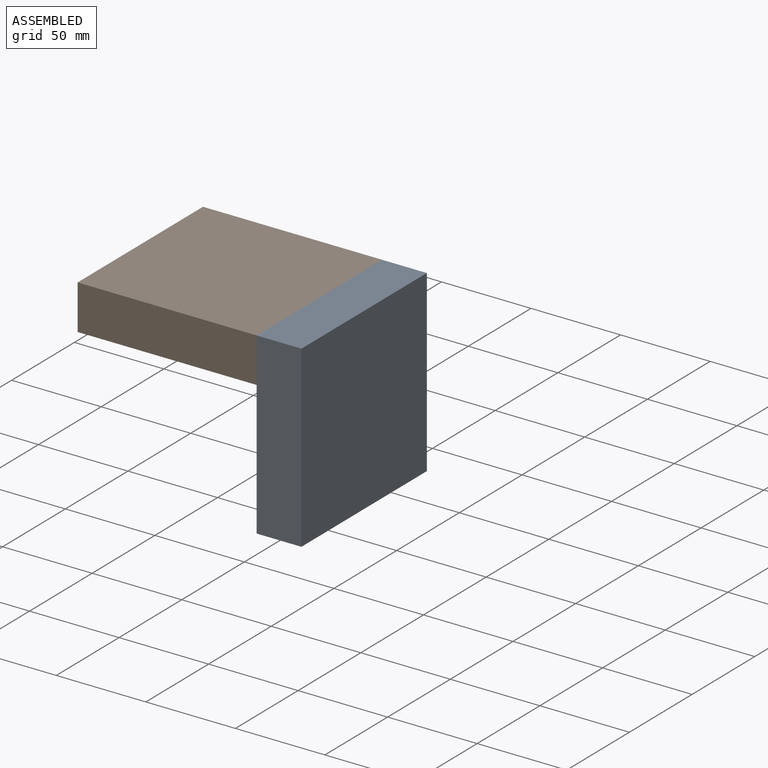
[diagram: assembled view]
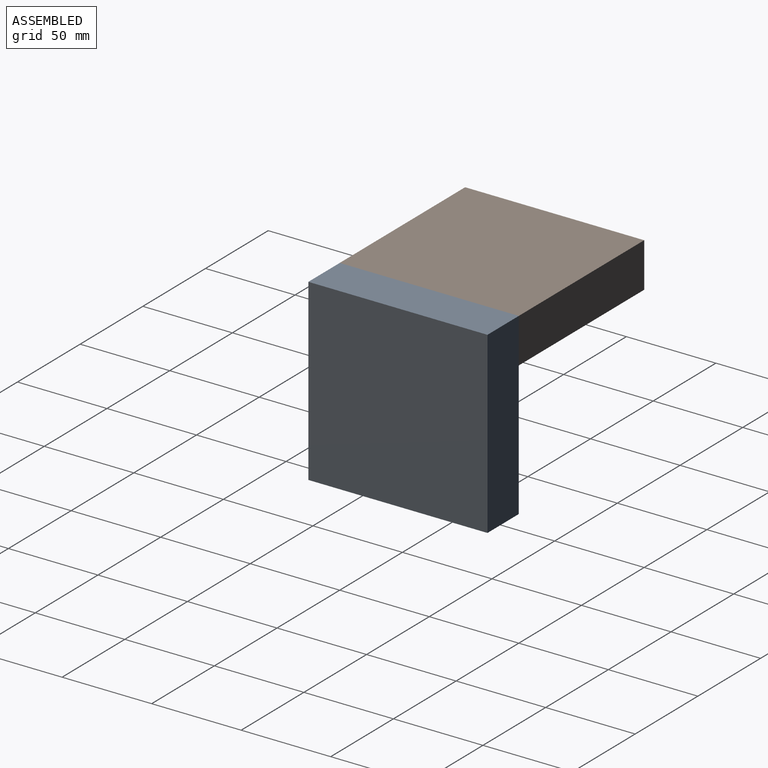
[diagram: assembled view, second angle]
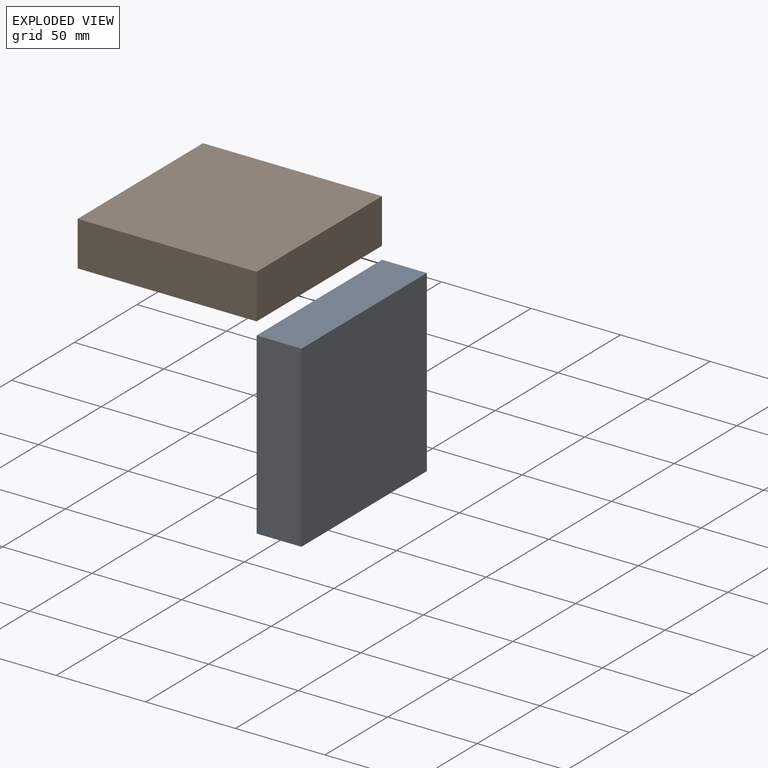
[diagram: exploded view]
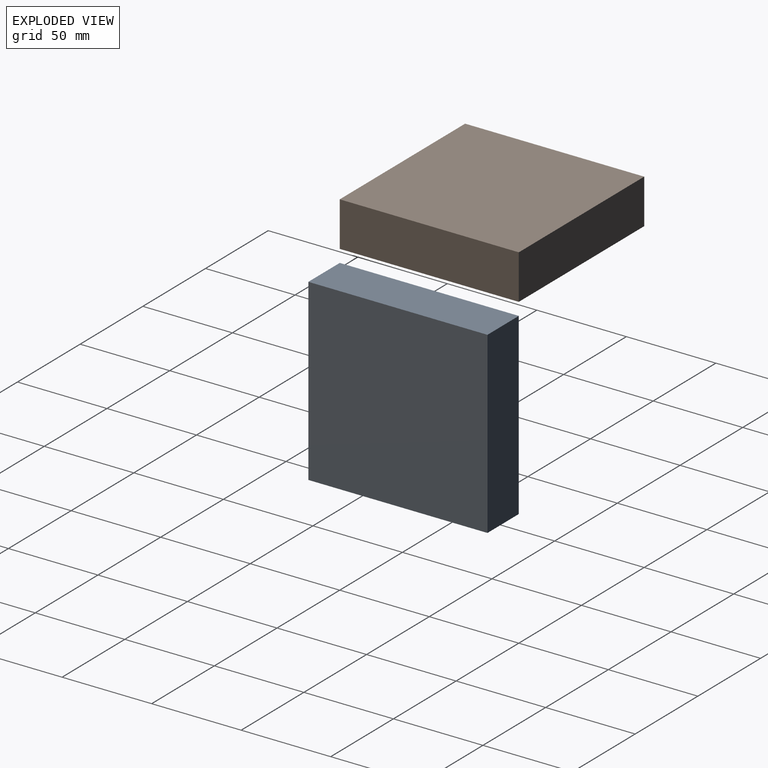
[diagram: exploded view, second angle]
ASSEMBLY  parts=2 mates=3
PART A: 6 faces, bbox 100x100x25 mm
  f0: plane 100x25mm, normal (0,1,0), area 2500mm2, adj f1,f3,f4,f5
  f1: plane 100x25mm, normal (-1,0,0), area 2500mm2, adj f0,f2,f4,f5
  f2: plane 100x25mm, normal (0,-1,0), area 2500mm2, adj f1,f3,f4,f5
  f3: plane 100x25mm, normal (1,0,0), area 2500mm2, adj f0,f2,f4,f5
  f4: plane 100x100mm, normal (0,0,1), area 10000mm2, adj f0,f1,f2,f3
  f5: plane 100x100mm, normal (0,0,-1), area 10000mm2, adj f0,f1,f2,f3
PART B: same geometry as A
PLACE A rot(axis=(0.58,-0.58,-0.58),120deg) t=(-134.49,-223.44,86.21)mm
PLACE B t=(-62.69,-26.64,61.21)mm
MATE planar B.f4 <-> A.f0  axis (0,0,1) through (-209.49,-76.64,86.21)mm
MATE planar A.f4 <-> B.f3  axis (-1,0,0) through (-159.49,-76.64,36.21)mm
MATE planar B.f2 <-> A.f3  axis (0,-1,0) through (-209.49,-126.64,73.71)mm
